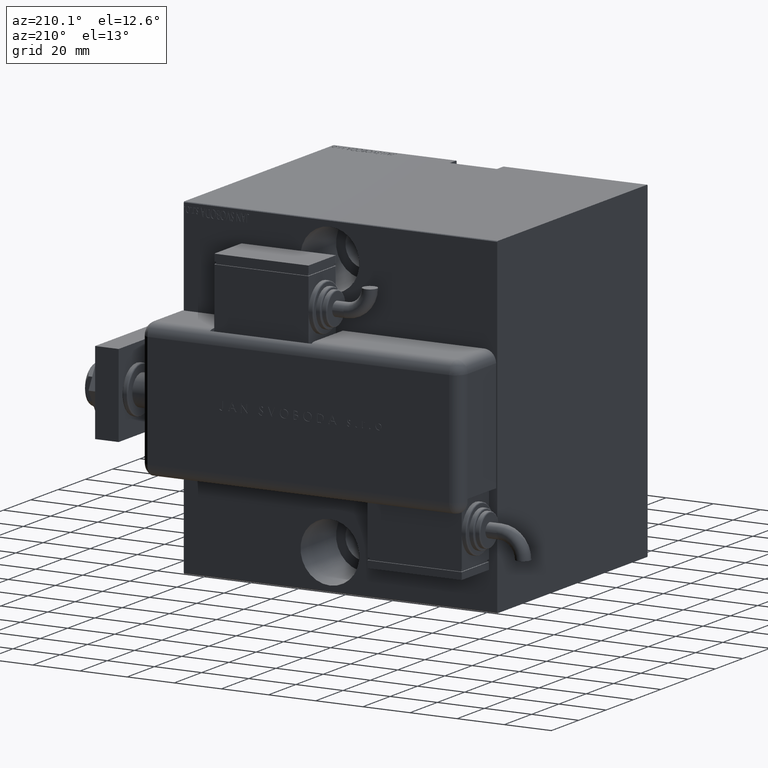
[diagram: clean part render]
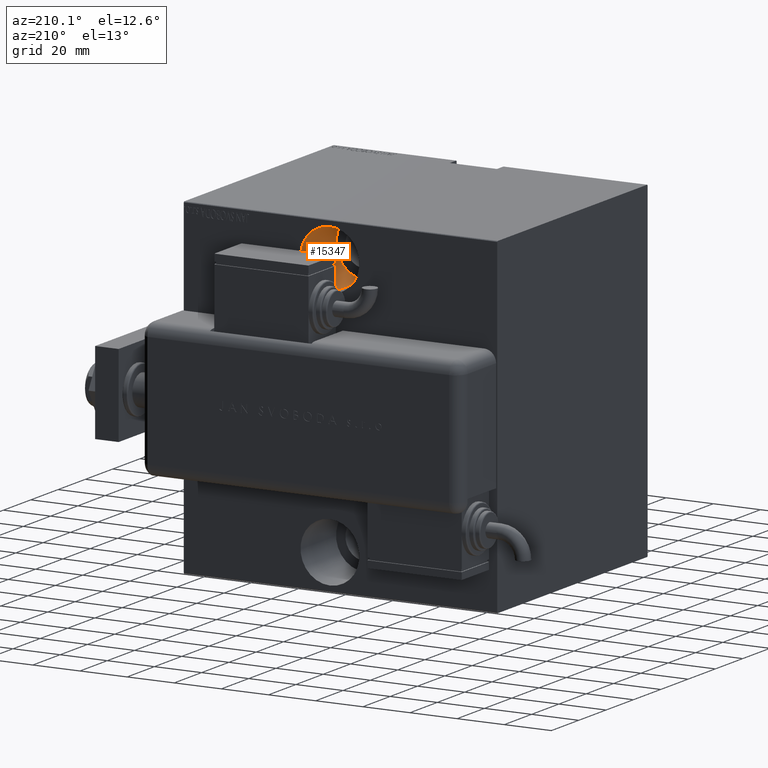
[diagram: same view with one face highlighted and labeled with its STEP entity id]
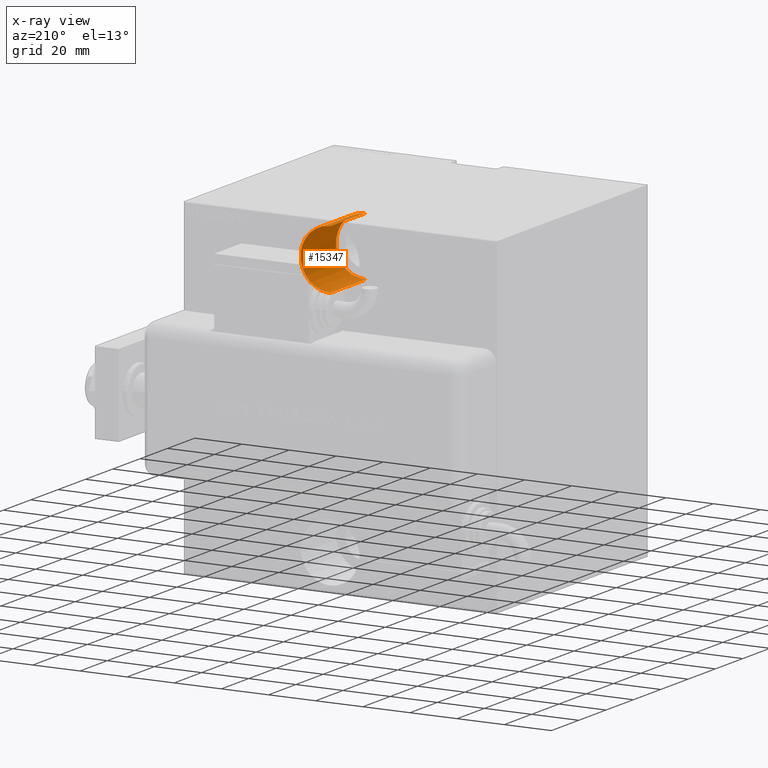
[diagram: x-ray of the same camera — body ghosted, the highlighted face saturated]
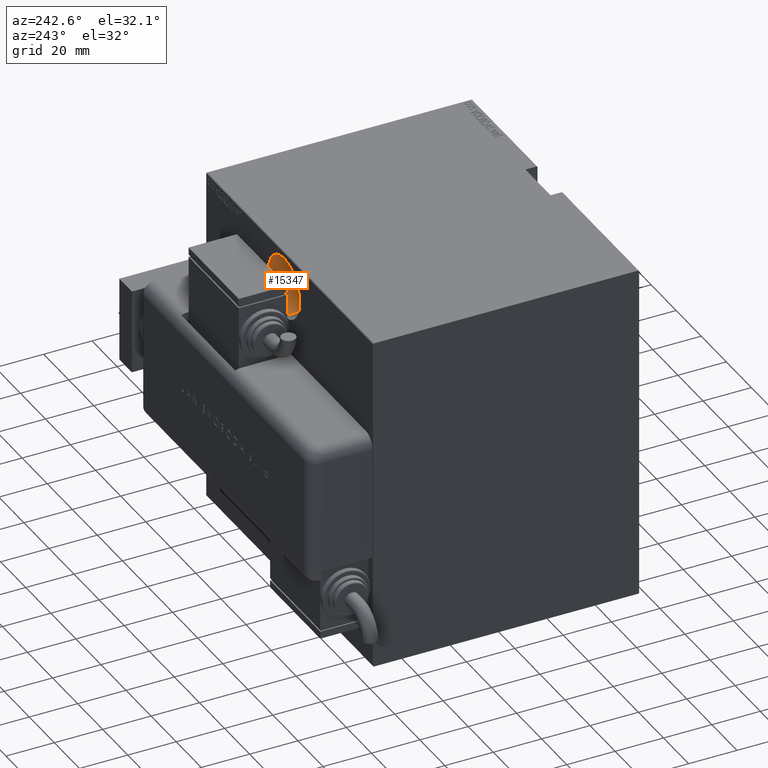
[diagram: same view with one face highlighted and labeled with its STEP entity id]
A machine part, auxiliary view. The second image highlights one B-rep face of the part: STEP entity #15347.
The next image is the same camera in x-ray: the body ghosted, the highlighted face saturated — about 0% of this face is hidden behind the body in this view.
A second angle (auxiliary view) of the same face is appended — the face is thin or edge-on in the first view.
In plain terms, the highlighted cylindrical surface (edge-blend (fillet) strip) has radius 12.5 mm, axis along (0, 1, 0).
Its self-contained STEP definition (entity closure, byte-faithful):
#1669 = ORIENTED_EDGE ( 'NONE', *, *, #1967, .F. ) ;
#1967 = EDGE_CURVE ( 'NONE', #36085, #51581, #13268, .T. ) ;
#2455 = DIRECTION ( 'NONE',  ( 0.000000000000000000, -2.775557561562888886E-16, -1.000000000000000000 ) ) ;
#3604 = DIRECTION ( 'NONE',  ( -0.000000000000000000, -1.000000000000000000, 1.963837897332234688E-16 ) ) ;
#4217 = ORIENTED_EDGE ( 'NONE', *, *, #51161, .T. ) ;
#5845 = FACE_OUTER_BOUND ( 'NONE', #28246, .T. ) ;
#7287 = VERTEX_POINT ( 'NONE', #14586 ) ;
#10580 = CYLINDRICAL_SURFACE ( 'NONE', #58213, 12.50000000000001066 ) ;
#13268 = CIRCLE ( 'NONE', #24630, 12.50000000000001066 ) ;
#13695 = CARTESIAN_POINT ( 'NONE',  ( 62.00000000000002132, -28.99999999999998579, 42.49999999999998579 ) ) ;
#14586 = CARTESIAN_POINT ( 'NONE',  ( 62.00000000000002132, -54.99999999999997868, 42.49999999999999289 ) ) ;
#15347 = ADVANCED_FACE ( 'NONE', ( #5845 ), #10580, .F. ) ;
#16434 = CARTESIAN_POINT ( 'NONE',  ( 62.00000000000002132, -28.99999999999997868, 67.50000000000000000 ) ) ;
#16949 = CARTESIAN_POINT ( 'NONE',  ( 62.00000000000002132, -28.99999999999998224, 55.00000000000000000 ) ) ;
#18077 = CARTESIAN_POINT ( 'NONE',  ( 62.00000000000002132, -28.99999999999998224, 55.00000000000000000 ) ) ;
#18228 = CARTESIAN_POINT ( 'NONE',  ( 62.00000000000002132, -28.99999999999997868, 67.50000000000000000 ) ) ;
#19818 = CARTESIAN_POINT ( 'NONE',  ( 62.00000000000002132, -54.99999999999997868, 55.00000000000000711 ) ) ;
#20522 = CARTESIAN_POINT ( 'NONE',  ( 62.00000000000002132, -28.99999999999998579, 42.49999999999998579 ) ) ;
#21498 = ORIENTED_EDGE ( 'NONE', *, *, #37996, .T. ) ;
#22298 = EDGE_CURVE ( 'NONE', #51581, #7287, #52804, .T. ) ;
#23965 = DIRECTION ( 'NONE',  ( 0.000000000000000000, 0.000000000000000000, -1.000000000000000000 ) ) ;
#24630 = AXIS2_PLACEMENT_3D ( 'NONE', #16949, #56393, #2455 ) ;
#26953 = DIRECTION ( 'NONE',  ( -0.000000000000000000, -1.000000000000000000, 1.963837897332234688E-16 ) ) ;
#28246 = EDGE_LOOP ( 'NONE', ( #1669, #21498, #4217, #40145 ) ) ;
#28399 = DIRECTION ( 'NONE',  ( 0.000000000000000000, -1.000000000000000000, 1.963837897332234442E-16 ) ) ;
#36085 = VERTEX_POINT ( 'NONE', #18228 ) ;
#37683 = VECTOR ( 'NONE', #44272, 1000.000000000000000 ) ;
#37996 = EDGE_CURVE ( 'NONE', #36085, #49377, #57042, .T. ) ;
#38966 = AXIS2_PLACEMENT_3D ( 'NONE', #19818, #28399, #23965 ) ;
#40145 = ORIENTED_EDGE ( 'NONE', *, *, #22298, .F. ) ;
#43649 = CIRCLE ( 'NONE', #38966, 12.50000000000001066 ) ;
#44272 = DIRECTION ( 'NONE',  ( -0.000000000000000000, -1.000000000000000000, 1.963837897332234688E-16 ) ) ;
#44404 = CARTESIAN_POINT ( 'NONE',  ( 62.00000000000002132, -54.99999999999997868, 67.50000000000001421 ) ) ;
#49377 = VERTEX_POINT ( 'NONE', #44404 ) ;
#49770 = DIRECTION ( 'NONE',  ( 0.000000000000000000, -2.775557561562888886E-16, -1.000000000000000000 ) ) ;
#51161 = EDGE_CURVE ( 'NONE', #49377, #7287, #43649, .T. ) ;
#51581 = VERTEX_POINT ( 'NONE', #13695 ) ;
#52804 = LINE ( 'NONE', #20522, #54719 ) ;
#54719 = VECTOR ( 'NONE', #3604, 1000.000000000000000 ) ;
#56393 = DIRECTION ( 'NONE',  ( 0.000000000000000000, -1.000000000000000000, 1.963837897332234442E-16 ) ) ;
#57042 = LINE ( 'NONE', #16434, #37683 ) ;
#58213 = AXIS2_PLACEMENT_3D ( 'NONE', #18077, #26953, #49770 ) ;